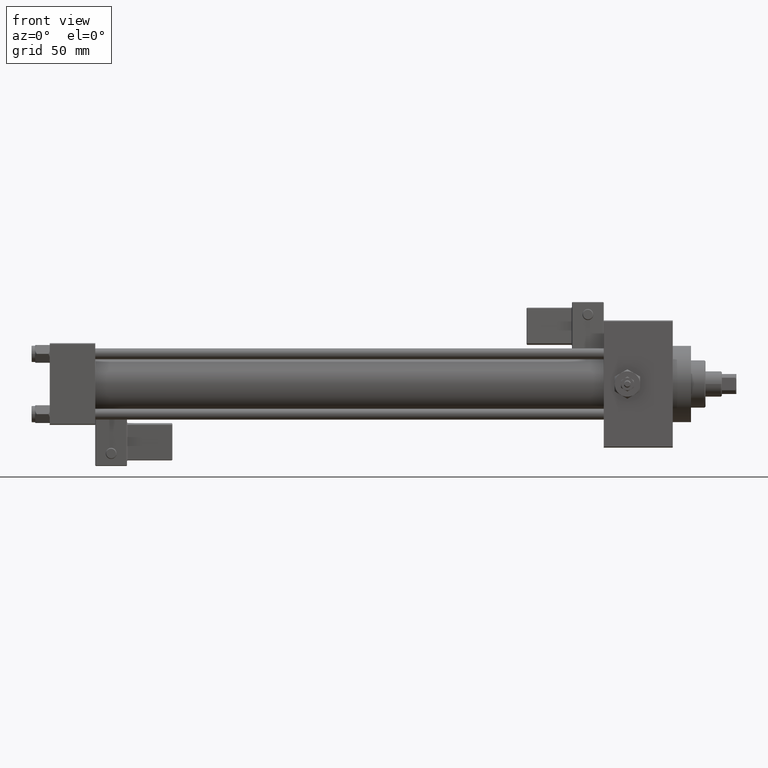
[diagram: clean part render]
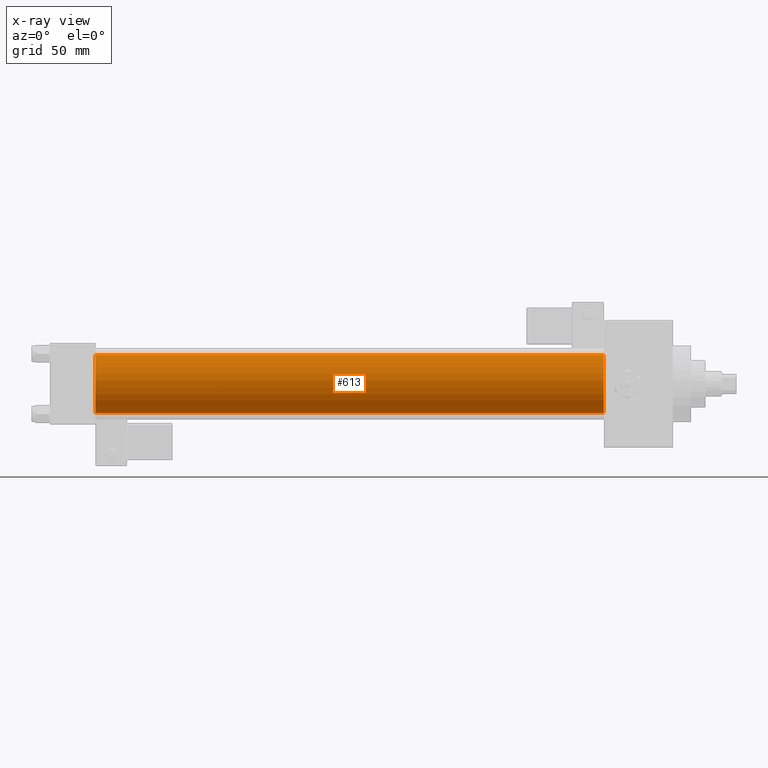
[diagram: x-ray — body ghosted, one internal face saturated and labeled with its STEP entity id]
A machine part, front view, then the same camera in x-ray: the body is ghosted and one INTERNAL B-rep face — a face not visible from any outside direction — is saturated and labeled: STEP entity #613.
In plain terms, the highlighted cylindrical surface (edge-blend (fillet) strip) has radius 16 mm, axis along (-1, -0, -0).
Its self-contained STEP definition (entity closure, byte-faithful):
#300 = DIRECTION ( 'NONE',  ( 0.000000000000000000, 0.000000000000000000, -1.000000000000000000 ) ) ;
#531 = DIRECTION ( 'NONE',  ( -1.000000000000000000, -0.000000000000000000, -0.000000000000000000 ) ) ;
#613 = ADVANCED_FACE ( 'NONE', ( #18719 ), #49821, .F. ) ;
#4524 = EDGE_LOOP ( 'NONE', ( #12915, #42466, #5013, #19860 ) ) ;
#4643 = LINE ( 'NONE', #16216, #16774 ) ;
#5013 = ORIENTED_EDGE ( 'NONE', *, *, #9708, .F. ) ;
#6414 = VECTOR ( 'NONE', #25740, 1000.000000000000000 ) ;
#7754 = DIRECTION ( 'NONE',  ( 1.000000000000000000, 0.000000000000000000, 0.000000000000000000 ) ) ;
#8645 = AXIS2_PLACEMENT_3D ( 'NONE', #28322, #7754, #300 ) ;
#9708 = EDGE_CURVE ( 'NONE', #29571, #28504, #18436, .T. ) ;
#12915 = ORIENTED_EDGE ( 'NONE', *, *, #19213, .T. ) ;
#13422 = DIRECTION ( 'NONE',  ( 0.000000000000000000, 0.000000000000000000, -1.000000000000000000 ) ) ;
#14603 = DIRECTION ( 'NONE',  ( -1.000000000000000000, -0.000000000000000000, -0.000000000000000000 ) ) ;
#15973 = EDGE_CURVE ( 'NONE', #31273, #29571, #4643, .T. ) ;
#16216 = CARTESIAN_POINT ( 'NONE',  ( 305.0000000000000568, -2.602085213965210642E-15, 16.00000000000000000 ) ) ;
#16774 = VECTOR ( 'NONE', #531, 1000.000000000000000 ) ;
#18436 = CIRCLE ( 'NONE', #43872, 16.00000000000000000 ) ;
#18483 = CARTESIAN_POINT ( 'NONE',  ( 305.0000000000000568, -2.602085213965210642E-15, 0.000000000000000000 ) ) ;
#18719 = FACE_OUTER_BOUND ( 'NONE', #4524, .T. ) ;
#19213 = EDGE_CURVE ( 'NONE', #31273, #27152, #47261, .T. ) ;
#19853 = AXIS2_PLACEMENT_3D ( 'NONE', #18483, #14603, #45968 ) ;
#19860 = ORIENTED_EDGE ( 'NONE', *, *, #15973, .F. ) ;
#25256 = CARTESIAN_POINT ( 'NONE',  ( 25.00000000000000000, -2.602085213965210642E-15, 0.000000000000000000 ) ) ;
#25740 = DIRECTION ( 'NONE',  ( -1.000000000000000000, -0.000000000000000000, -0.000000000000000000 ) ) ;
#27152 = VERTEX_POINT ( 'NONE', #37163 ) ;
#27739 = EDGE_CURVE ( 'NONE', #27152, #28504, #44753, .T. ) ;
#28322 = CARTESIAN_POINT ( 'NONE',  ( 305.0000000000000568, -2.602085213965210642E-15, 0.000000000000000000 ) ) ;
#28504 = VERTEX_POINT ( 'NONE', #29125 ) ;
#29125 = CARTESIAN_POINT ( 'NONE',  ( 25.00000000000000000, -6.426503353294456087E-16, -16.00000000000000000 ) ) ;
#29571 = VERTEX_POINT ( 'NONE', #30662 ) ;
#30662 = CARTESIAN_POINT ( 'NONE',  ( 25.00000000000000000, -2.602085213965210642E-15, 16.00000000000000000 ) ) ;
#31273 = VERTEX_POINT ( 'NONE', #48802 ) ;
#37163 = CARTESIAN_POINT ( 'NONE',  ( 305.0000000000000568, -6.426503353294456087E-16, -16.00000000000000000 ) ) ;
#42466 = ORIENTED_EDGE ( 'NONE', *, *, #27739, .T. ) ;
#43872 = AXIS2_PLACEMENT_3D ( 'NONE', #25256, #48128, #13422 ) ;
#44753 = LINE ( 'NONE', #48347, #6414 ) ;
#45968 = DIRECTION ( 'NONE',  ( 0.000000000000000000, 0.000000000000000000, 1.000000000000000000 ) ) ;
#47261 = CIRCLE ( 'NONE', #8645, 16.00000000000000000 ) ;
#48128 = DIRECTION ( 'NONE',  ( 1.000000000000000000, 0.000000000000000000, 0.000000000000000000 ) ) ;
#48347 = CARTESIAN_POINT ( 'NONE',  ( 305.0000000000000568, -6.426503353294456087E-16, -16.00000000000000000 ) ) ;
#48802 = CARTESIAN_POINT ( 'NONE',  ( 305.0000000000000568, -2.602085213965210642E-15, 16.00000000000000000 ) ) ;
#49821 = CYLINDRICAL_SURFACE ( 'NONE', #19853, 16.00000000000000000 ) ;